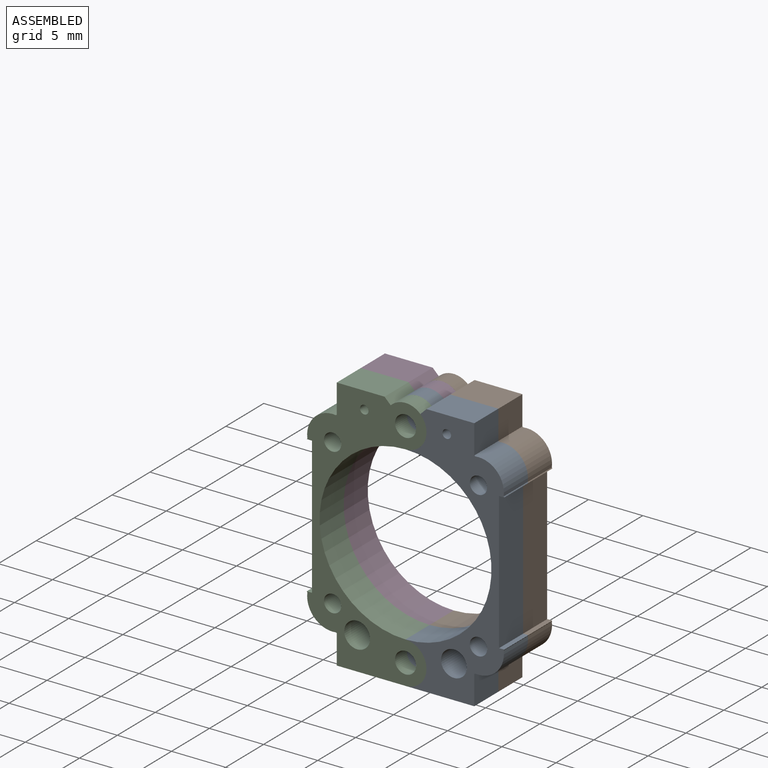
[diagram: assembled view]
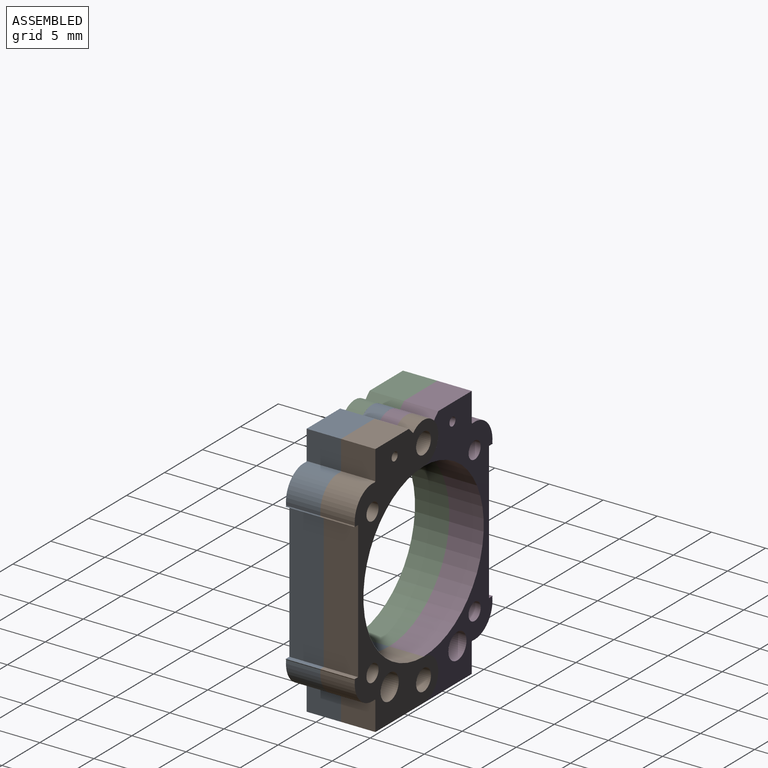
[diagram: assembled view, second angle]
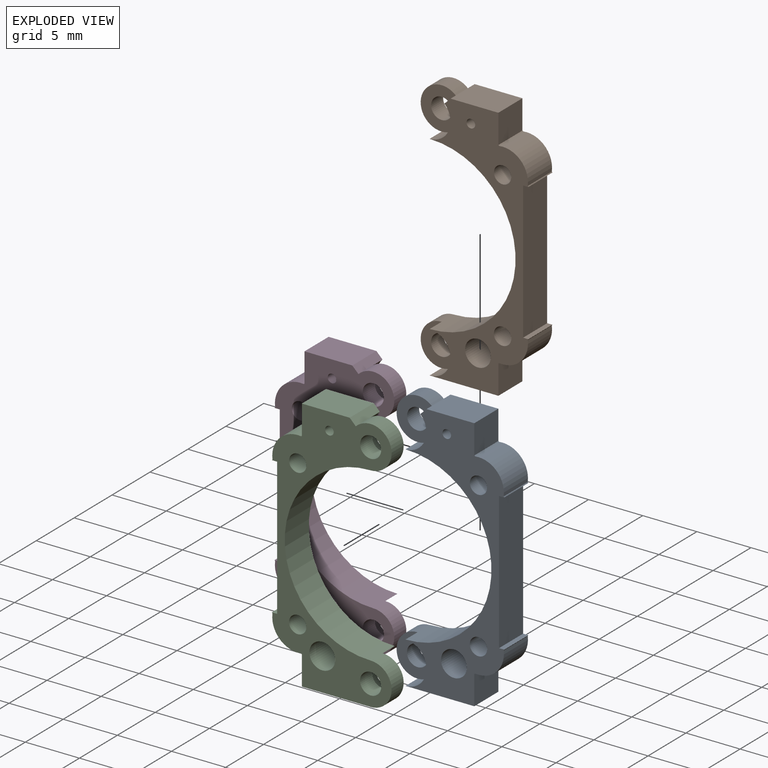
[diagram: exploded view]
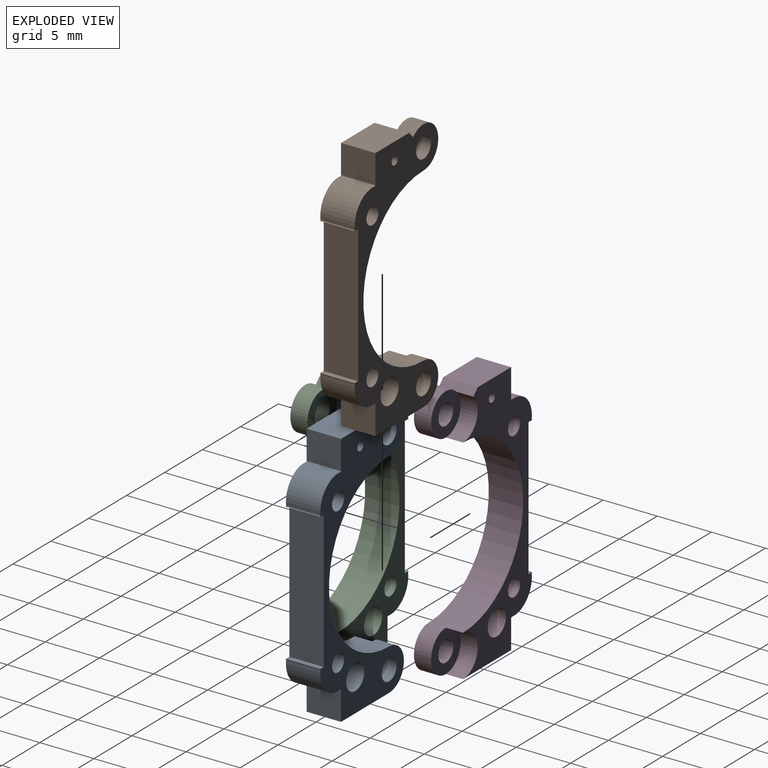
[diagram: exploded view, second angle]
ASSEMBLY  parts=4 mates=8
PART A: 29 faces, bbox 11.1x3.2x23.6 mm
  f0: plane 3.87x3.87mm, normal (0,1,0), area 8.8mm2, adj f19,f22,f26
  f1: plane 3.87x3.87mm, normal (0,1,0), area 8.8mm2, adj f3,f24,f27
  f2: cylinder r=7.94mm len=15.88mm, axis (0,1,0), area 79.2mm2, adj f3,f22,f25,f26,f27,f28
  f3: cylinder r=1.94mm len=3.87mm, axis (0,1,0), area 12.1mm2, adj f1,f2,f4,f25
  f4: plane 3.18x0.57mm, normal (0.71,0,0.71), area 2.5mm2, adj f3,f5,f25,f27,f28
  f5: plane 4.41x3.18mm, normal (0,0,1), area 14mm2, adj f4,f6,f25,f28
  f6: plane 3.18x2.69mm, normal (-1,0,0), area 8.5mm2, adj f5,f7,f25,f28
  f7: cylinder r=11.11mm len=3.18mm, axis (0,1,0), area 0.3mm2, adj f6,f8,f25,f28
  f8: cylinder r=2.35mm len=3.18mm, axis (0,1,0), area 13.7mm2, adj f7,f9,f25,f28
  f9: cylinder r=11.11mm len=3.18mm, axis (0,1,0), area 0.3mm2, adj f8,f10,f25,f28
  f10: plane 3.18x0.48mm, normal (0,0,-1), area 1.5mm2, adj f9,f11,f25,f28
  f11: plane 12.7x3.18mm, normal (-1,0,0), area 40.3mm2, adj f10,f12,f25,f28
  f12: plane 3.18x0.48mm, normal (0,0,1), area 1.5mm2, adj f11,f13,f25,f28
  f13: cylinder r=11.11mm len=3.18mm, axis (0,1,0), area 0.3mm2, adj f12,f14,f25,f28
  f14: cylinder r=2.35mm len=3.18mm, axis (0,1,0), area 13.7mm2, adj f13,f15,f25,f28
  f15: cylinder r=11.11mm len=3.18mm, axis (0,1,0), area 0.3mm2, adj f14,f16,f25,f28
  f16: plane 3.18x2.69mm, normal (-1,0,0), area 8.5mm2, adj f15,f17,f25,f28
  f17: plane 6.35x3.18mm, normal (0,0,-1), area 20.2mm2, adj f16,f22,f25,f26,f28
  f18: cylinder r=0.4mm len=3.18mm, axis (0,1,0), area 7.9mm2, adj f25,f28
  f19: cylinder r=0.98mm len=1.96mm, axis (0,1,0), area 9.8mm2, adj f0,f25
  f20: cylinder r=0.79mm len=3.18mm, axis (0,1,0), area 15.8mm2, adj f25,f28
  f21: cylinder r=0.8mm len=3.18mm, axis (0,1,0), area 16mm2, adj f25,f28
  f22: cylinder r=1.94mm len=3.87mm, axis (0,1,0), area 9.7mm2, adj f0,f2,f17,f25
  f23: cylinder r=1.19mm len=3.18mm, axis (0,1,0), area 23.8mm2, adj f25,f28
  f24: cylinder r=0.97mm len=1.94mm, axis (0,1,0), area 9.7mm2, adj f1,f25
  f25: plane 23.62x11.06mm, normal (0,-1,0), area 89.1mm2, adj f2,f3,f4,f5,f6,f7,f8,f9
  f26: cylinder r=1.94mm len=3.87mm, axis (0,-1,0), area 9.7mm2, adj f0,f2,f17,f28
  f27: cylinder r=1.94mm len=3.31mm, axis (0,-1,0), area 7.2mm2, adj f1,f2,f4,f28
  f28: plane 23.62x9.12mm, normal (0,1,0), area 71.5mm2, adj f2,f4,f5,f6,f7,f8,f9,f10
PART B: same geometry as A
PART C: same geometry as A
PART D: same geometry as A
PLACE A rot(axis=(0,0,-1),180deg) t=(-11.65,-14.48,-7.88)mm
PLACE B rot(axis=(0,0,-1),180deg) t=(-11.65,-11.3,-7.88)mm
PLACE C t=(-11.65,-14.48,-7.88)mm
PLACE D t=(-11.65,-11.3,-7.88)mm
MATE planar C.f11 <-> D.f11  axis (-1,0,0) through (-20.28,-12.89,-7.88)mm
MATE planar C.f18 <-> A.f18  axis (0,-1,0) through (-15.46,-16.07,2.34)mm
MATE planar C.f28 <-> D.f25  axis (0,1,0) through (-18,-12.89,1.24)mm
MATE revolute A.f3 <-> C.f3  axis (0,-1,0) through (-11.65,-14.48,1.99)mm
MATE planar A.f5 <-> B.f5  axis (0,0,1) through (-7.5,-14.48,3.93)mm
MATE planar D.f5 <-> C.f5  axis (0,0,1) through (-18,-9.72,3.93)mm
MATE planar B.f28 <-> A.f25  axis (0,-1,0) through (-5.3,-12.89,1.24)mm
MATE planar B.f11 <-> A.f11  axis (1,0,0) through (-3.01,-11.3,-7.88)mm
